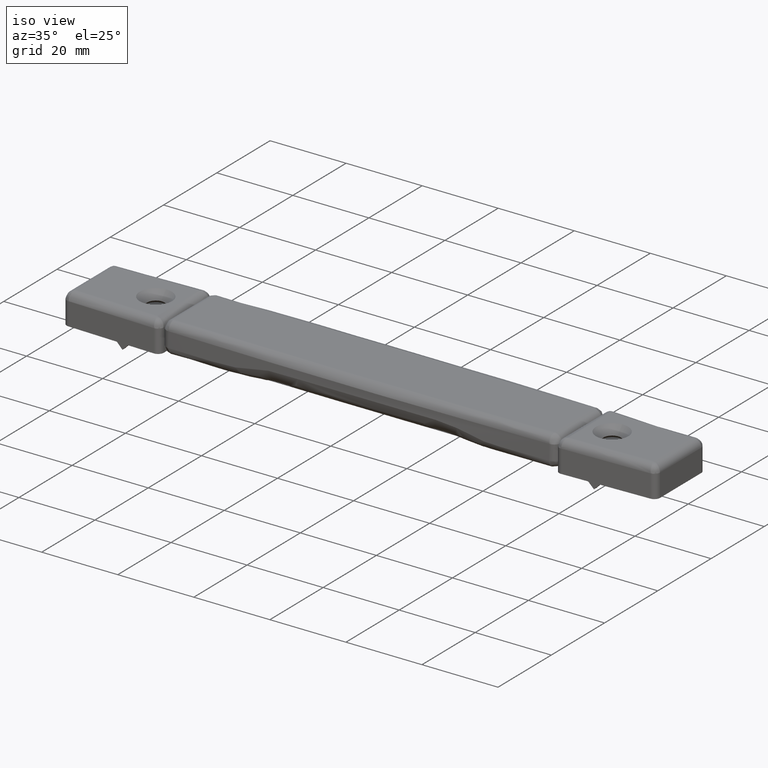
[diagram: clean part render]
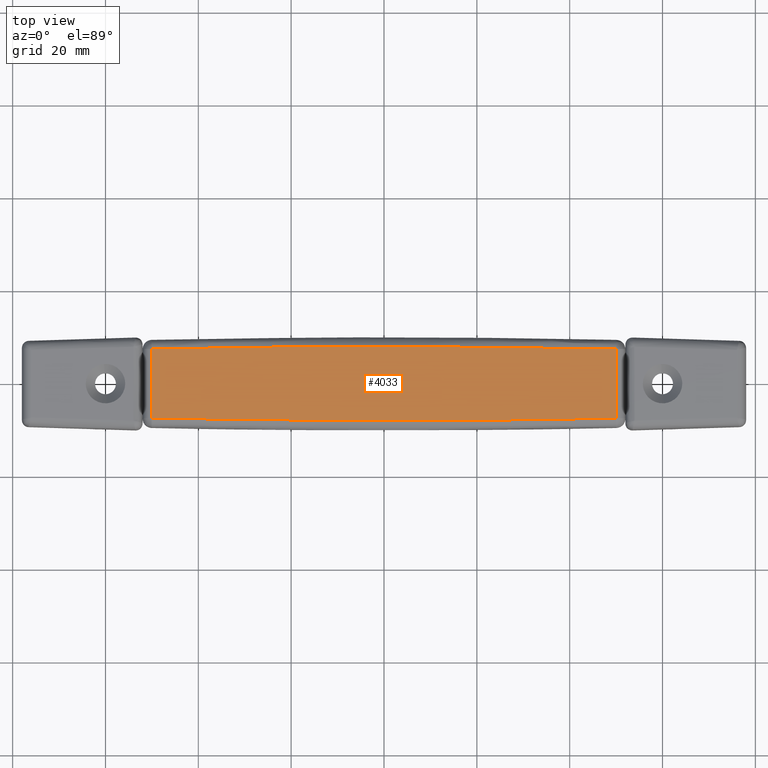
[diagram: tour spotlight — one face highlighted and labeled with its STEP entity id]
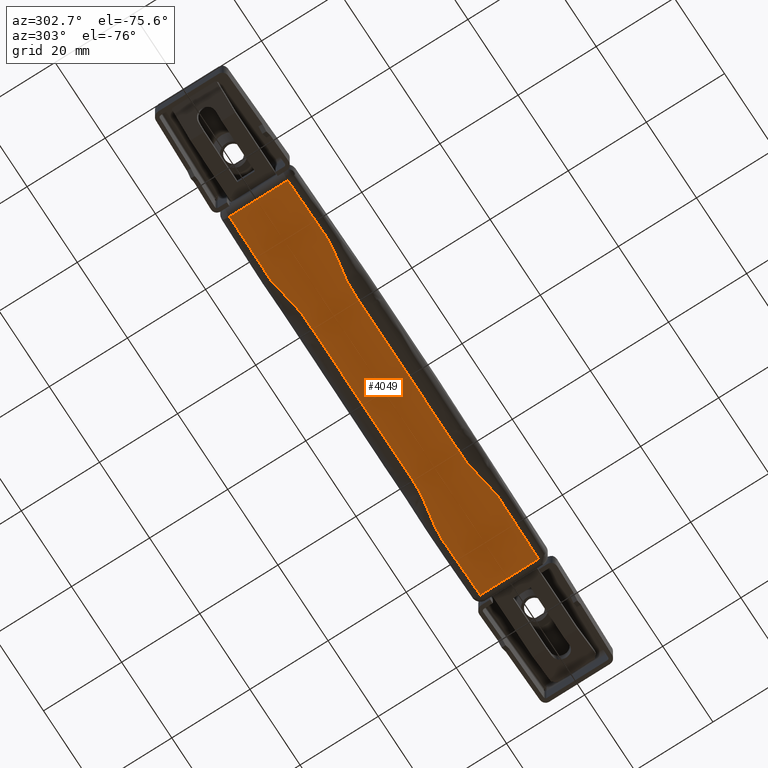
[diagram: tour spotlight — one face highlighted and labeled with its STEP entity id]
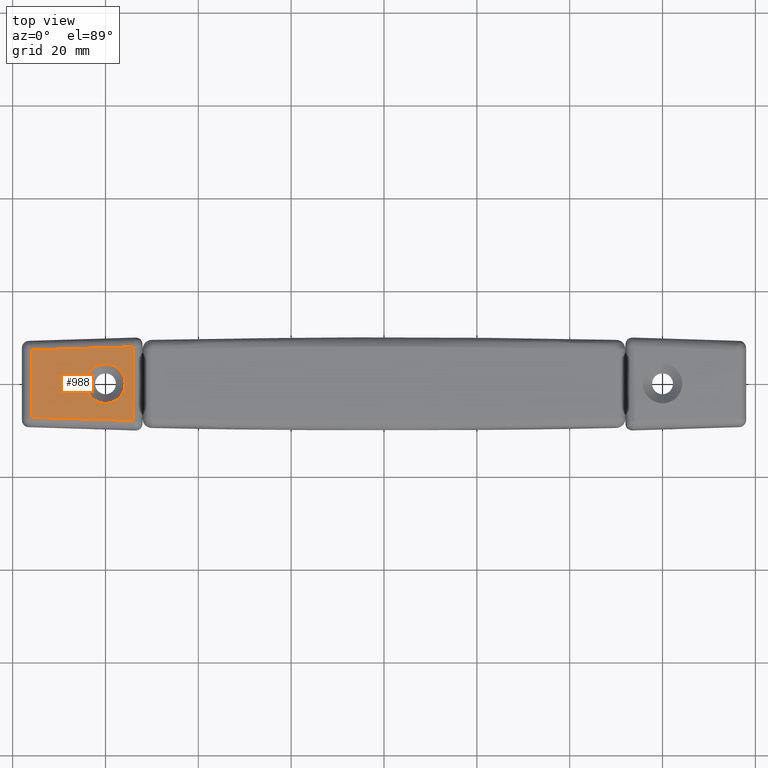
[diagram: tour spotlight — one face highlighted and labeled with its STEP entity id]
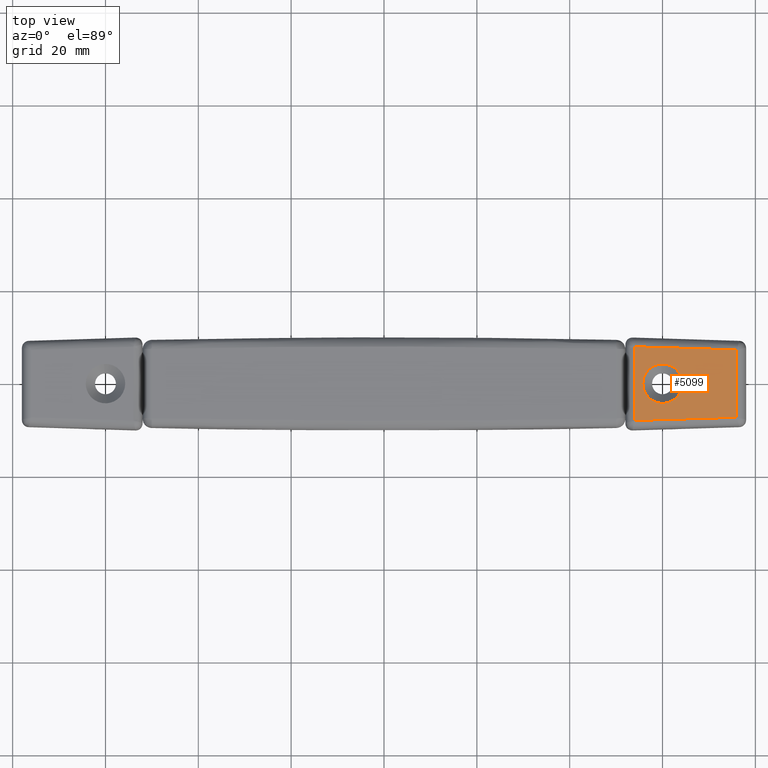
[diagram: tour spotlight — one face highlighted and labeled with its STEP entity id]
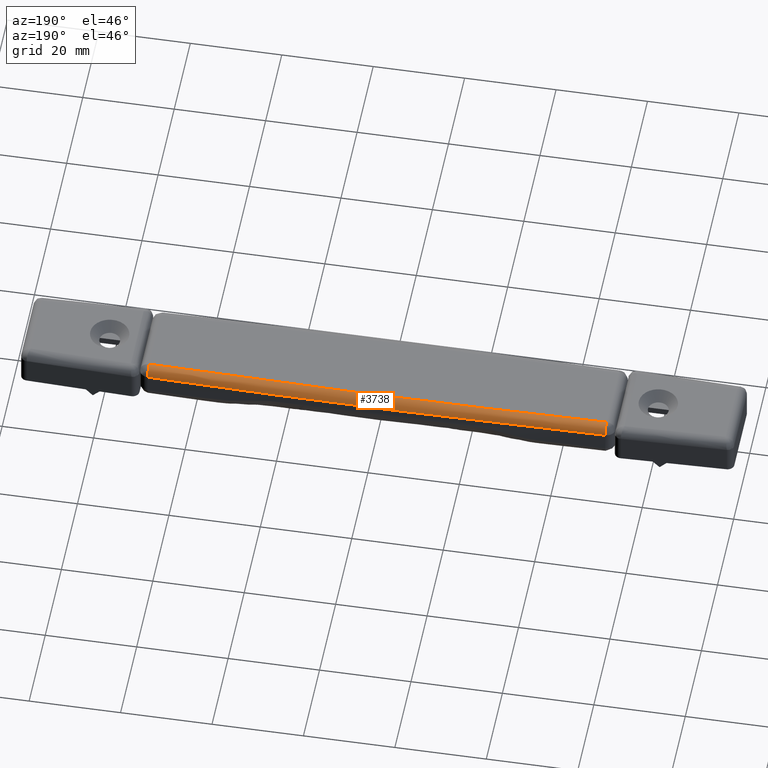
[diagram: tour spotlight — one face highlighted and labeled with its STEP entity id]
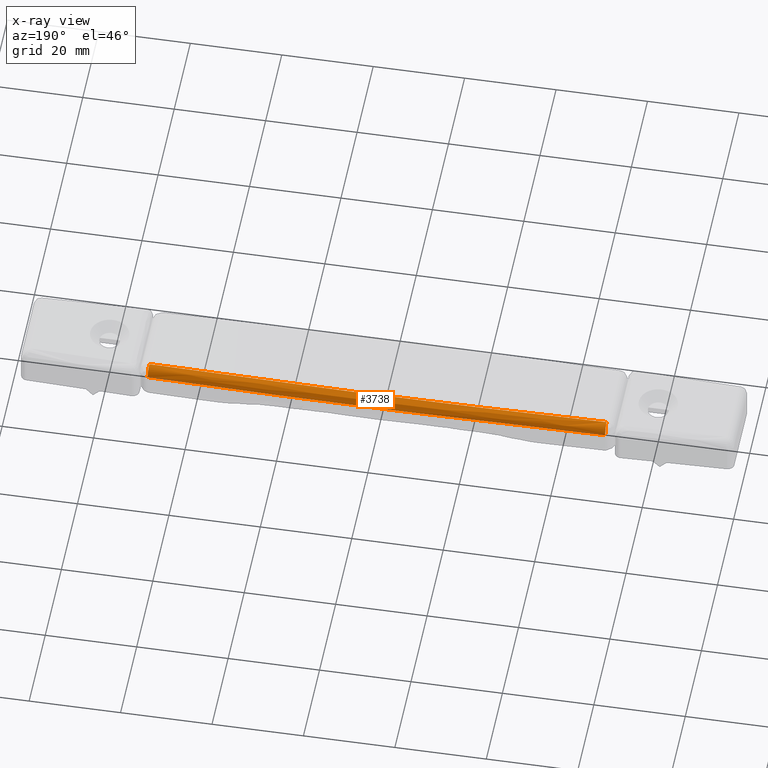
[diagram: x-ray of the same camera — body ghosted, this tour face saturated]
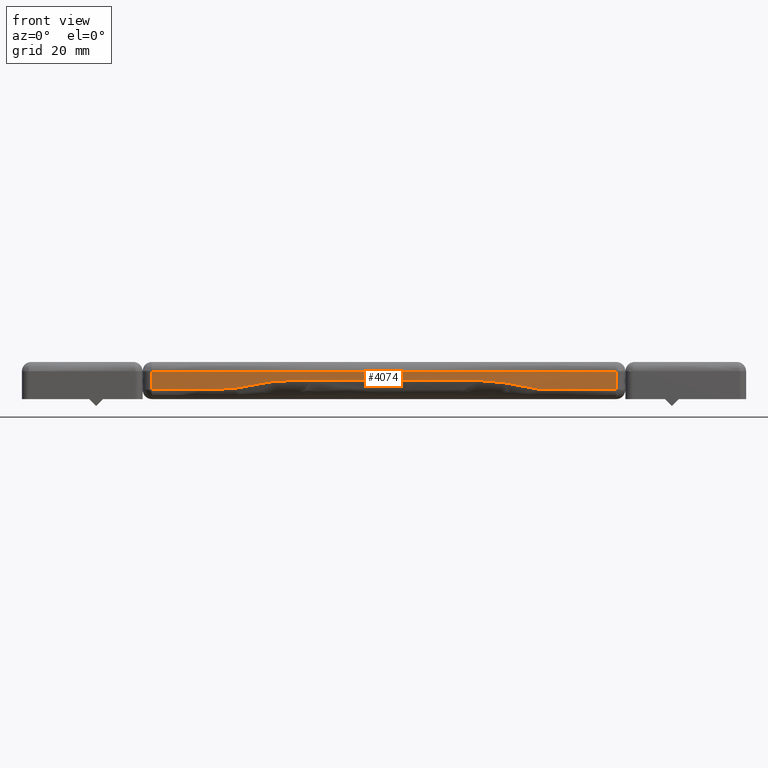
[diagram: tour spotlight — one face highlighted and labeled with its STEP entity id]
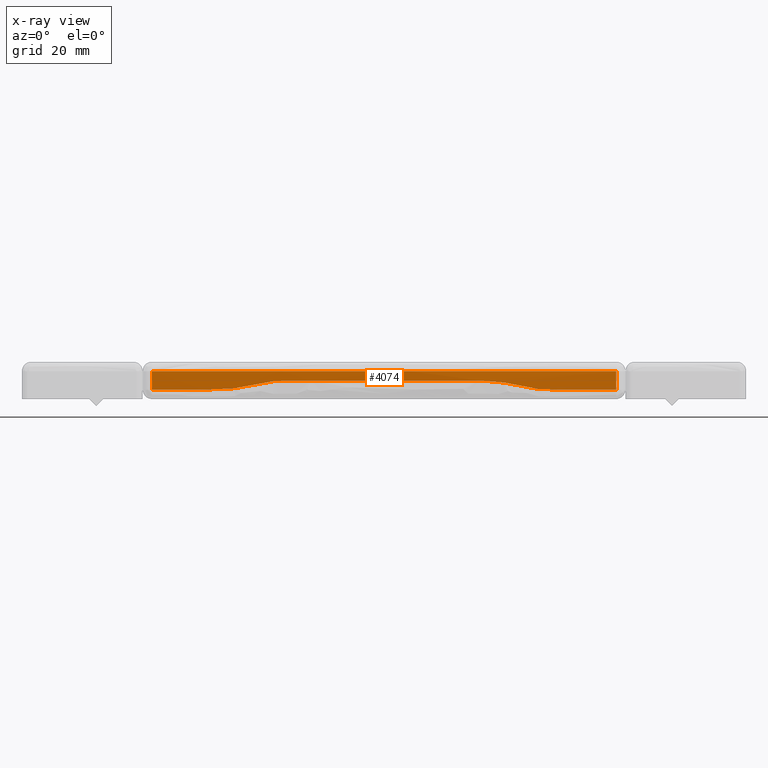
[diagram: x-ray of the same camera — body ghosted, this tour face saturated]
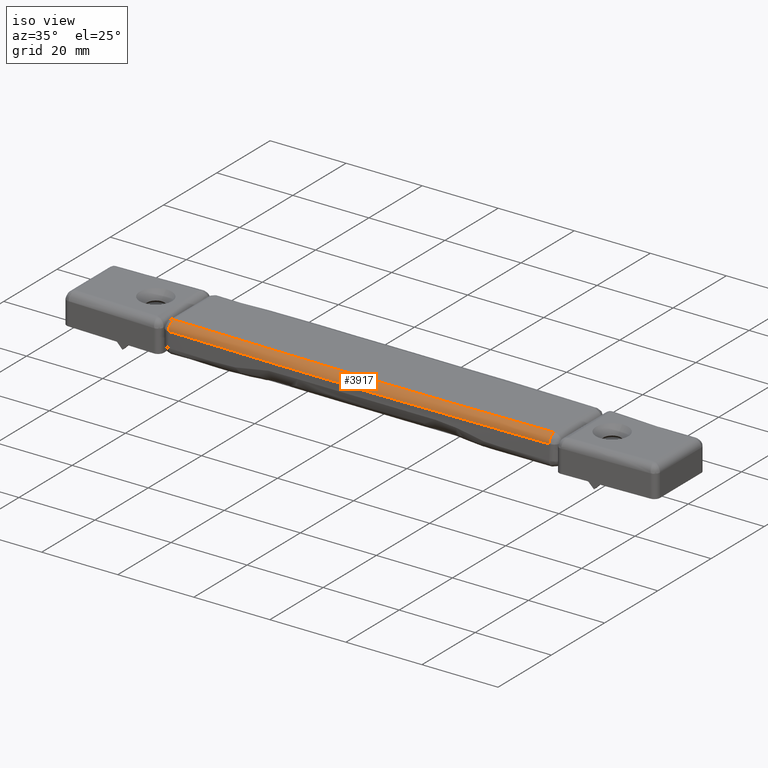
[diagram: tour spotlight — one face highlighted and labeled with its STEP entity id]
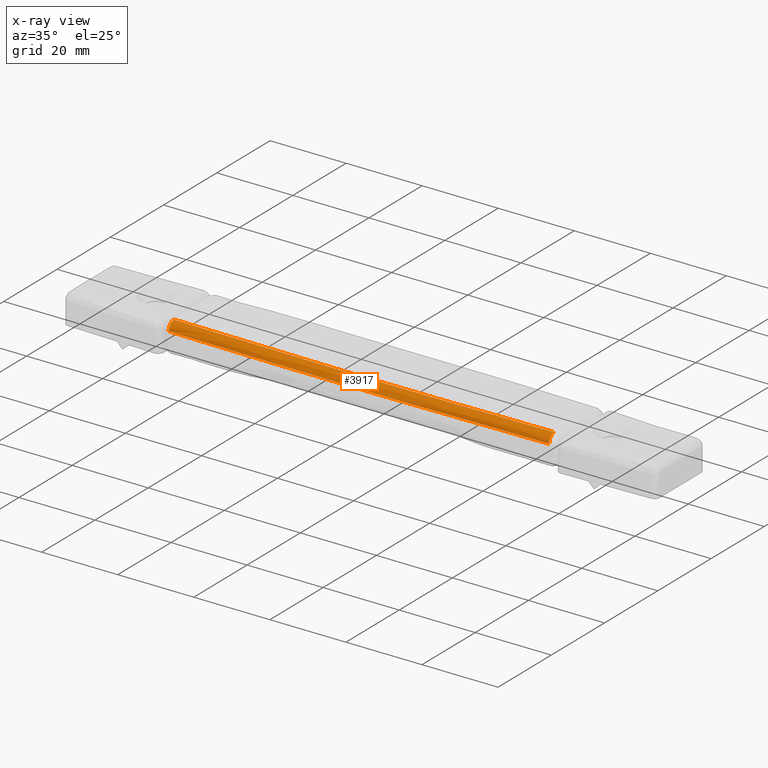
[diagram: x-ray of the same camera — body ghosted, this tour face saturated]
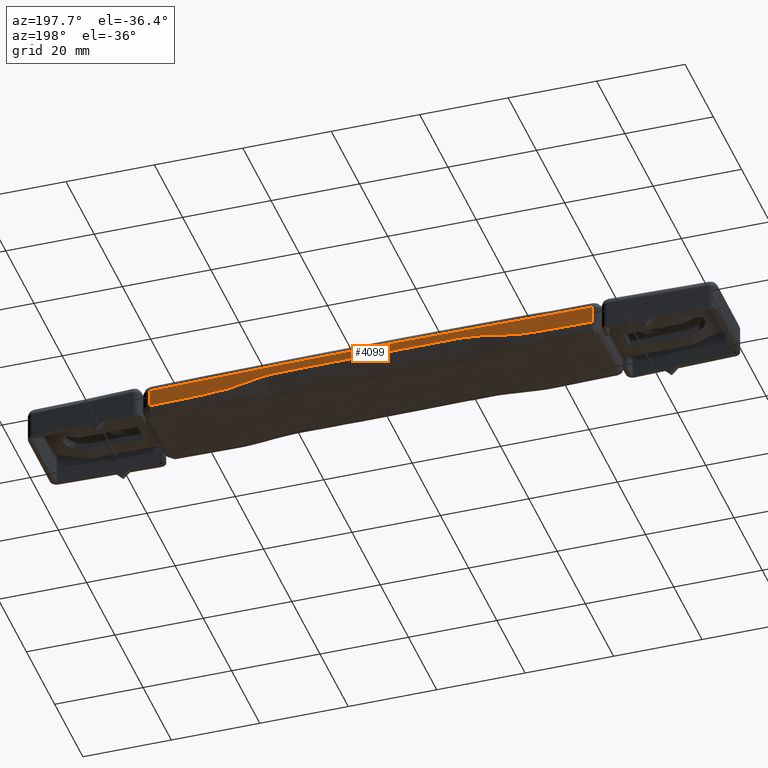
[diagram: tour spotlight — one face highlighted and labeled with its STEP entity id]
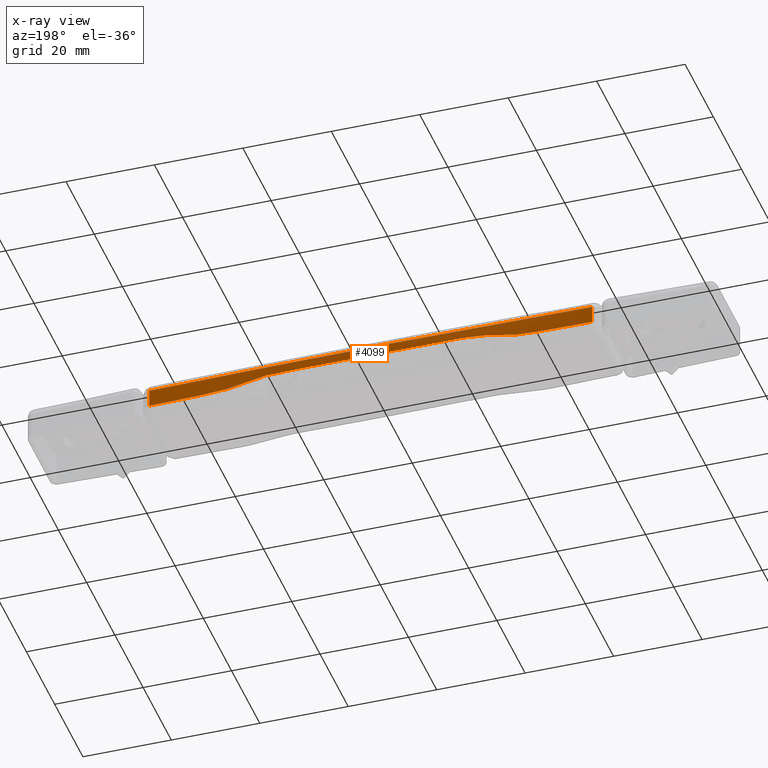
[diagram: x-ray of the same camera — body ghosted, this tour face saturated]
A machine part: a face-by-face anatomy tour. The part has 170 B-rep faces; the first image is the clean iso view, then the 8 largest visible faces are spotlighted one at a time (largest first), each with its STEP entity span.

Face 1 — top view, entity #4033. In plain terms, the highlighted face is a freeform B-spline surface patch.
Definition (entity closure, byte-faithful):
#3678=CARTESIAN_POINT('',(-49.999600000000001,7.453993049669090,8.0));
#3679=VERTEX_POINT('',#3678);
#3693=CARTESIAN_POINT('',(50.0,7.453984344422790,8.0));
#3694=VERTEX_POINT('',#3693);
#3695=CARTESIAN_POINT('',(50.0,7.453984344422790,8.0));
#3696=CARTESIAN_POINT('',(0.000200094725965,8.542140118592112,8.000000000000002));
#3697=CARTESIAN_POINT('',(-49.999599999998857,7.453993049669094,8.0));
#3705=(BOUNDED_CURVE()B_SPLINE_CURVE(2,(#3695,#3696,#3697),.UNSPECIFIED.,.F.,.U.)CURVE()GEOMETRIC_REPRESENTATION_ITEM()QUASI_UNIFORM_CURVE()RATIONAL_B_SPLINE_CURVE((1.0,0.999763267492191,1.0))REPRESENTATION_ITEM(''));
#3706=EDGE_CURVE('',#3694,#3679,#3705,.T.);
#3811=CARTESIAN_POINT('',(-49.999600000000001,-7.457993049668771,8.0));
#3812=VERTEX_POINT('',#3811);
#3826=CARTESIAN_POINT('',(-49.999600000000001,7.453993049669090,8.0));
#3827=CARTESIAN_POINT('',(-49.999600000000001,-7.457993049668771,8.0));
#3828=QUASI_UNIFORM_CURVE('',1,(#3826,#3827),.UNSPECIFIED.,.F.,.U.);
#3829=EDGE_CURVE('',#3679,#3812,#3828,.T.);
#3887=CARTESIAN_POINT('',(50.0,-7.457984344422460,8.0));
#3888=VERTEX_POINT('',#3887);
#3902=CARTESIAN_POINT('',(-49.999599999999987,-7.457993049668765,8.0));
#3903=CARTESIAN_POINT('',(0.000200094724259,-8.546140118591783,8.000000000000002));
#3904=CARTESIAN_POINT('',(49.999999999999829,-7.457984344422464,8.0));
#3912=(BOUNDED_CURVE()B_SPLINE_CURVE(2,(#3902,#3903,#3904),.UNSPECIFIED.,.F.,.U.)CURVE()GEOMETRIC_REPRESENTATION_ITEM()QUASI_UNIFORM_CURVE()RATIONAL_B_SPLINE_CURVE((1.0,0.999763267492191,1.0))REPRESENTATION_ITEM(''));
#3913=EDGE_CURVE('',#3812,#3888,#3912,.T.);
#4018=CARTESIAN_POINT('',(-54.994579826181393,8.797199968979625,8.0));
#4019=CARTESIAN_POINT('',(54.994982508379650,8.797199968979625,8.0));
#4020=CARTESIAN_POINT('',(-54.994579826181393,-8.801200398132741,8.0));
#4021=CARTESIAN_POINT('',(54.994982508379650,-8.801200398132741,8.0));
#4022=B_SPLINE_SURFACE_WITH_KNOTS('',1,1,((#4018,#4020),(#4019,#4021)),.UNSPECIFIED.,.F.,.F.,.U.,(2,2),(2,2),(0.0,109.989562334561000),(0.0,17.598400367112369),.UNSPECIFIED.);
#4023=ORIENTED_EDGE('',*,*,#3913,.T.);
#4024=CARTESIAN_POINT('',(50.0,-7.457984344422460,8.0));
#4025=CARTESIAN_POINT('',(50.0,7.453984344422790,8.0));
#4026=QUASI_UNIFORM_CURVE('',1,(#4024,#4025),.UNSPECIFIED.,.F.,.U.);
#4027=EDGE_CURVE('',#3888,#3694,#4026,.T.);
#4028=ORIENTED_EDGE('',*,*,#4027,.T.);
#4029=ORIENTED_EDGE('',*,*,#3706,.T.);
#4030=ORIENTED_EDGE('',*,*,#3829,.T.);
#4031=EDGE_LOOP('',(#4023,#4028,#4029,#4030));
#4032=FACE_OUTER_BOUND('',#4031,.T.);
#4033=ADVANCED_FACE('',(#4032),#4022,.F.);

Face 2 — auxiliary view, entity #4049. In plain terms, the highlighted face is a freeform B-spline surface patch.
Definition (entity closure, byte-faithful):
#2892=CARTESIAN_POINT('',(-49.999600000000001,7.453993043295670,0.0));
#2893=VERTEX_POINT('',#2892);
#3142=CARTESIAN_POINT('',(50.0,7.453984337407190,0.0));
#3143=VERTEX_POINT('',#3142);
#3157=CARTESIAN_POINT('',(-49.999600000000001,7.453993043295670,0.0));
#3158=CARTESIAN_POINT('',(-46.082928991246057,7.539208086076124,0.0));
#3159=CARTESIAN_POINT('',(-41.904920289410768,7.619755162427684,0.0));
#3160=CARTESIAN_POINT('',(-37.596150636058397,7.690959028298588,0.0));
#3161=CARTESIAN_POINT('',(-37.073887836700102,7.700303517321741,0.0));
#3162=CARTESIAN_POINT('',(-36.714884460127543,7.706293098118715,0.0));
#3163=CARTESIAN_POINT('',(-36.388609371978397,7.713118205272045,0.0));
#3164=CARTESIAN_POINT('',(-36.094864415919339,7.718813490124887,0.0));
#3165=CARTESIAN_POINT('',(-35.768481260680922,7.725904991689672,0.0));
#3166=CARTESIAN_POINT('',(-35.507222272392227,7.726733565481607,0.0));
#3167=CARTESIAN_POINT('',(-35.311391500971837,7.724147359225614,0.0));
#3168=CARTESIAN_POINT('',(-35.213453008181197,7.723104442542816,0.0));
#3169=CARTESIAN_POINT('',(-34.984992180252597,7.718221074084758,0.0));
#3170=CARTESIAN_POINT('',(-34.756585320890501,7.710679553695564,0.0));
#3171=CARTESIAN_POINT('',(-34.528339260255457,7.699441258498724,0.0));
#3172=CARTESIAN_POINT('',(-34.006561684482307,7.672844348710802,0.0));
#3173=CARTESIAN_POINT('',(-32.965474696383090,7.580821892244155,0.0));
#3174=CARTESIAN_POINT('',(-31.882361405524520,7.426980330677482,0.0));
#3175=CARTESIAN_POINT('',(-31.061045521274210,7.291449871780212,0.0));
#3176=CARTESIAN_POINT('',(-30.225589224968751,7.141651599526635,0.0));
#3177=CARTESIAN_POINT('',(-29.472122476308510,6.997029946890723,0.0));
#3178=CARTESIAN_POINT('',(-28.622701378124550,6.832335046995496,0.0));
#3179=CARTESIAN_POINT('',(-28.174198918358950,6.743842004210175,0.0));
#3180=CARTESIAN_POINT('',(-27.340855790086781,6.581991059518238,0.0));
#3181=CARTESIAN_POINT('',(-26.506560297864041,6.425768302655597,0.0));
#3182=CARTESIAN_POINT('',(-25.670180428295950,6.280859995471224,0.0));
#3183=CARTESIAN_POINT('',(-25.154200382278539,6.199495025730656,0.0));
#3184=CARTESIAN_POINT('',(-24.346601652047820,6.081898657462616,0.0));
#3185=CARTESIAN_POINT('',(-23.308368511579790,5.960830410483255,0.0));
#3186=CARTESIAN_POINT('',(-22.289246183072379,5.907132223337533,0.0));
#3187=CARTESIAN_POINT('',(-21.807818064606440,5.899904791173635,0.0));
#3188=CARTESIAN_POINT('',(-21.669133499526819,5.901023275988207,0.0));
#3189=CARTESIAN_POINT('',(-21.491600013791370,5.901136922805643,0.0));
#3190=CARTESIAN_POINT('',(-21.124333036237761,5.903951284595477,0.0));
#3191=CARTESIAN_POINT('',(-20.528531179184821,5.907147243308614,0.0));
#3192=CARTESIAN_POINT('',(-19.734811119997779,5.913922018008933,0.0));
#3193=CARTESIAN_POINT('',(-18.624793126276192,5.922465959983224,0.0));
#3194=CARTESIAN_POINT('',(-6.301015639243659,6.019578147753740,0.0));
#3195=CARTESIAN_POINT('',(6.774450400033462,6.019568517216327,0.0));
#3196=CARTESIAN_POINT('',(19.441022679260922,5.915991483347877,0.0));
#3197=CARTESIAN_POINT('',(20.818355483301030,5.905322147516966,0.0));
#3198=CARTESIAN_POINT('',(21.234608479324191,5.903284216314010,0.0));
#3199=CARTESIAN_POINT('',(21.548823581673560,5.900844039312431,0.0));
#3200=CARTESIAN_POINT('',(21.705931461410898,5.900983389515034,0.0));
#3201=CARTESIAN_POINT('',(21.860908990597689,5.899721434754014,0.0));
#3202=CARTESIAN_POINT('',(22.003601789730102,5.903740911796339,0.0));
#3203=CARTESIAN_POINT('',(22.166689980527590,5.907339446701265,0.0));
#3204=CARTESIAN_POINT('',(22.656120969256840,5.924771271434456,0.0));
#3205=CARTESIAN_POINT('',(23.568208438395519,5.989726282997066,0.0));
#3206=CARTESIAN_POINT('',(24.492032011534000,6.102596971851164,0.0));
#3207=CARTESIAN_POINT('',(25.202648926156812,6.206668482423345,0.0));
#3208=CARTESIAN_POINT('',(25.782928698988549,6.299415378628106,0.0));
#3209=CARTESIAN_POINT('',(26.699342040625730,6.460487391287681,0.0));
#3210=CARTESIAN_POINT('',(27.789897402998001,6.667638986093473,0.0));
#3211=CARTESIAN_POINT('',(28.782751314751479,6.863986031190132,0.0));
#3212=CARTESIAN_POINT('',(29.696477478700871,7.039828930505328,0.0));
#3213=CARTESIAN_POINT('',(30.450365143426950,7.182005480781927,0.0));
#3214=CARTESIAN_POINT('',(31.060972507015052,7.291309763138121,0.0));
#3215=CARTESIAN_POINT('',(31.882279570281469,7.426926464026802,0.0));
#3216=CARTESIAN_POINT('',(32.900766000446573,7.571579869977136,0.0));
#3217=CARTESIAN_POINT('',(33.941339971457040,7.667082218328652,0.0));
#3218=CARTESIAN_POINT('',(34.479152405346532,7.697481093368283,0.0));
#3219=CARTESIAN_POINT('',(34.772742914019837,7.707634959334868,0.0));
#3220=CARTESIAN_POINT('',(35.148105588652470,7.714573071183522,0.0));
#3221=CARTESIAN_POINT('',(36.045902578390908,7.717817864924758,0.0));
#3222=CARTESIAN_POINT('',(37.074220743399401,7.701819106746175,0.0));
#3223=CARTESIAN_POINT('',(38.200324134653407,7.678804217542647,0.0));
#3224=CARTESIAN_POINT('',(39.277502916643058,7.657377303141685,0.0));
#3225=CARTESIAN_POINT('',(40.599497444447927,7.633262735048892,0.0));
#3226=CARTESIAN_POINT('',(42.411063777158581,7.601653927058509,0.0));
#3227=CARTESIAN_POINT('',(44.075860088314599,7.577755609415204,0.0));
#3228=CARTESIAN_POINT('',(45.218247680821882,7.554781494443112,0.0));
#3229=CARTESIAN_POINT('',(47.062452688337103,7.517484169875009,0.0));
#3230=CARTESIAN_POINT('',(48.531232571826841,7.486000342904489,0.0));
#3231=CARTESIAN_POINT('',(50.0,7.453984337407190,0.0));
#3232=B_SPLINE_CURVE_WITH_KNOTS('',3,(#3157,#3158,#3159,#3160,#3161,#3162,#3163,#3164,#3165,#3166,#3167,#3168,#3169,#3170,#3171,#3172,#3173,#3174,#3175,#3176,#3177,#3178,#3179,#3180,#3181,#3182,#3183,#3184,#3185,#3186,#3187,#3188,#3189,#3190,#3191,#3192,#3193,#3194,#3195,#3196,#3197,#3198,#3199,#3200,#3201,#3202,#3203,#3204,#3205,#3206,#3207,#3208,#3209,#3210,#3211,#3212,#3213,#3214,#3215,#3216,#3217,#3218,#3219,#3220,#3221,#3222,#3223,#3224,#3225,#3226,#3227,#3228,#3229,#3230,#3231),.UNSPECIFIED.,.F.,.U.,(4,1,1,1,1,1,1,1,1,1,1,1,1,1,1,1,1,1,1,2,1,1,1,1,1,1,1,1,1,1,1,1,1,1,1,1,1,1,1,1,1,1,1,1,1,1,1,1,1,1,1,1,1,1,1,1,1,1,1,1,1,1,1,1,1,1,1,1,1,2,4),(0.000120689475068,11.752915614870499,12.536435497510720,12.928195235704420,13.319954973898090,13.613593843476080,13.907232713053990,14.201358195321260,14.592967761169360,14.690937065795890,14.788906370422341,14.886794296495180,15.376482434235269,15.474432670961530,15.572382907687750,16.943713564185689,18.608683742733088,18.853291253882261,19.441042693035779,21.154936936345710,22.036763703013492,22.526377742026611,23.701685787795501,24.583100227516201,25.072827663290159,25.268675008499290,27.031608916278859,28.206826020492912,28.329003423874990,28.475942462531989,28.622881501189031,28.861604362854880,29.577772947852580,30.410311235311109,31.242849522769600,32.907926097686641,67.382791068653859,70.468142765070354,70.908907293129815,71.514913371294071,71.716915397348771,71.851577416764741,71.986239436180625,72.181820289375537,72.279767965704806,72.475643957725197,73.650920272305171,75.022065895861701,75.266861945779681,75.805556513982566,76.784927782978315,78.058168115888478,79.135660858885160,79.821173030336851,80.849636503959175,81.437189517374264,81.682052006252079,83.346988871948213,84.522305929415339,84.816022748269972,84.962856593748882,85.403582147359089,85.942252789383076,87.656190134078955,88.488753573317780,89.321317012556548,90.888356200427140,92.455395396645827,94.756844274284205,95.883241721495438,100.290591420283800),.UNSPECIFIED.);
#3233=EDGE_CURVE('',#2893,#3143,#3232,.T.);
#3281=CARTESIAN_POINT('',(-49.999600000000001,-7.457993042501350,0.0));
#3282=VERTEX_POINT('',#3281);
#3468=CARTESIAN_POINT('',(50.0,-7.457984337529070,0.0));
#3469=VERTEX_POINT('',#3468);
#3470=CARTESIAN_POINT('',(50.0,-7.457984337529070,0.0));
#3471=CARTESIAN_POINT('',(46.083329006088043,-7.543200062457871,0.0));
#3472=CARTESIAN_POINT('',(41.905320318279770,-7.623747866410077,0.0));
#3473=CARTESIAN_POINT('',(37.596550677327187,-7.694952482586531,0.0));
#3474=CARTESIAN_POINT('',(37.074287879595921,-7.704297062547421,0.0));
#3475=CARTESIAN_POINT('',(36.715284504067142,-7.710286705858349,0.0));
#3476=CARTESIAN_POINT('',(36.389009417107737,-7.717111869815490,0.0));
#3477=CARTESIAN_POINT('',(36.095264462040433,-7.722807205811794,0.0));
#3478=CARTESIAN_POINT('',(35.768881308036569,-7.729898764200981,0.0));
#3479=CARTESIAN_POINT('',(35.507622319891063,-7.730727383470025,0.0));
#3480=CARTESIAN_POINT('',(35.311791548020707,-7.728141211302586,0.0));
#3481=CARTESIAN_POINT('',(35.213853141529178,-7.727099186093845,0.0));
#3482=CARTESIAN_POINT('',(34.985391767877843,-7.722210348055568,0.0));
#3483=CARTESIAN_POINT('',(34.756986592460862,-7.714685907495341,0.0));
#3484=CARTESIAN_POINT('',(34.528736489987153,-7.703406803752269,0.0));
#3485=CARTESIAN_POINT('',(34.202650168443213,-7.686998815725701,0.0));
#3486=CARTESIAN_POINT('',(33.160505142813690,-7.609761740275856,0.0));
#3487=CARTESIAN_POINT('',(32.076016493610730,-7.462655991100506,0.0));
#3488=CARTESIAN_POINT('',(31.061450824731349,-7.295500916152434,0.0));
#3489=CARTESIAN_POINT('',(30.225996063639101,-7.145613526811344,0.0));
#3490=CARTESIAN_POINT('',(29.472521425225452,-7.001028274304696,0.0));
#3491=CARTESIAN_POINT('',(28.623101571101760,-6.836328503550615,0.0));
#3492=CARTESIAN_POINT('',(28.174598512548091,-6.747839292627484,0.0));
#3493=CARTESIAN_POINT('',(27.341255913795809,-6.585983197839859,0.0));
#3494=CARTESIAN_POINT('',(26.506959591486549,-6.429770279701258,0.0));
#3495=CARTESIAN_POINT('',(25.670581302281299,-6.284843698344522,0.0));
#3496=CARTESIAN_POINT('',(25.154599723713758,-6.203495154624973,0.0));
#3497=CARTESIAN_POINT('',(24.347001122933861,-6.085891858388993,0.0));
#3498=CARTESIAN_POINT('',(23.308768492486472,-5.964826904615578,0.0));
#3499=CARTESIAN_POINT('',(22.289645938753520,-5.911128652591198,0.0));
#3500=CARTESIAN_POINT('',(21.808217775228702,-5.903900897013902,0.0));
#3501=CARTESIAN_POINT('',(21.669533229158290,-5.905019503180538,0.0));
#3502=CARTESIAN_POINT('',(21.491999743437269,-5.905133180916952,0.0));
#3503=CARTESIAN_POINT('',(21.124732766377541,-5.907947606653992,0.0));
#3504=CARTESIAN_POINT('',(20.528930909899529,-5.911143669119475,0.0));
#3505=CARTESIAN_POINT('',(19.735210851919671,-5.917918582007182,0.0));
#3506=CARTESIAN_POINT('',(18.625192858170461,-5.926462719169028,0.0));
#3507=CARTESIAN_POINT('',(6.301415411411707,-6.023576962975038,0.0));
#3508=CARTESIAN_POINT('',(-6.333273746747479,-6.023572150055511,0.0));
#3509=CARTESIAN_POINT('',(-18.852955749387771,-5.924700730488869,0.0));
#3510=CARTESIAN_POINT('',(-20.028293160857931,-5.915695760695321,0.0));
#3511=CARTESIAN_POINT('',(-20.817955081675670,-5.909231425885642,0.0));
#3512=CARTESIAN_POINT('',(-21.234208749291689,-5.907287913255294,0.0));
#3513=CARTESIAN_POINT('',(-21.548423852066719,-5.904847790973215,0.0));
#3514=CARTESIAN_POINT('',(-21.705531731803038,-5.904987168692754,0.0));
#3515=CARTESIAN_POINT('',(-21.860509261071609,-5.903725240000284,0.0));
#3516=CARTESIAN_POINT('',(-22.003202059937831,-5.907744744887882,0.0));
#3517=CARTESIAN_POINT('',(-22.166290251912191,-5.911343317230818,0.0));
#3518=CARTESIAN_POINT('',(-22.655721221774339,-5.928775156150887,0.0));
#3519=CARTESIAN_POINT('',(-23.567808725671231,-5.993730470833176,0.0));
#3520=CARTESIAN_POINT('',(-24.491632212059081,-6.106601396733417,0.0));
#3521=CARTESIAN_POINT('',(-25.202249936799792,-6.210666289793909,0.0));
#3522=CARTESIAN_POINT('',(-25.782527266371272,-6.303435865024305,0.0));
#3523=CARTESIAN_POINT('',(-26.698944614284681,-6.464467873976586,0.0));
#3524=CARTESIAN_POINT('',(-27.789492898334831,-6.671676220044976,0.0));
#3525=CARTESIAN_POINT('',(-28.782353503612530,-6.867977106385001,0.0));
#3526=CARTESIAN_POINT('',(-29.696077402212101,-7.043834880607364,0.0));
#3527=CARTESIAN_POINT('',(-30.449965326681578,-7.186013865233550,0.0));
#3528=CARTESIAN_POINT('',(-31.060575437695348,-7.295338057730672,0.0));
#3529=CARTESIAN_POINT('',(-32.010713374908953,-7.452117527607433,0.0));
#3530=CARTESIAN_POINT('',(-33.030049092458079,-7.592400002731167,0.0));
#3531=CARTESIAN_POINT('',(-34.071355071320262,-7.678538125209578,0.0));
#3532=CARTESIAN_POINT('',(-34.478749934377468,-7.701480325221857,0.0));
#3533=CARTESIAN_POINT('',(-34.772343531593748,-7.711637873092646,0.0));
#3534=CARTESIAN_POINT('',(-35.147704676242007,-7.718586650248383,0.0));
#3535=CARTESIAN_POINT('',(-36.045503437227083,-7.721815943489686,0.0));
#3536=CARTESIAN_POINT('',(-37.073820155674767,-7.705830531436167,0.0));
#3537=CARTESIAN_POINT('',(-38.199924226594483,-7.682809670257100,0.0));
#3538=CARTESIAN_POINT('',(-39.277102881236580,-7.661384141511815,0.0));
#3539=CARTESIAN_POINT('',(-40.599097413239960,-7.637269803605667,0.0));
#3540=CARTESIAN_POINT('',(-42.410663751424870,-7.605661311078714,0.0));
#3541=CARTESIAN_POINT('',(-44.075460066705972,-7.581763283442301,0.0));
#3542=CARTESIAN_POINT('',(-45.217847663172272,-7.558789367264217,0.0));
#3543=CARTESIAN_POINT('',(-47.062052677206381,-7.521492363676178,0.0));
#3544=CARTESIAN_POINT('',(-48.530832566217342,-7.490008792344348,0.0));
#3545=CARTESIAN_POINT('',(-49.999600000000001,-7.457993042501350,0.0));
#3546=B_SPLINE_CURVE_WITH_KNOTS('',3,(#3470,#3471,#3472,#3473,#3474,#3475,#3476,#3477,#3478,#3479,#3480,#3481,#3482,#3483,#3484,#3485,#3486,#3487,#3488,#3489,#3490,#3491,#3492,#3493,#3494,#3495,#3496,#3497,#3498,#3499,#3500,#3501,#3502,#3503,#3504,#3505,#3506,#3507,#3508,#3509,#3510,#3511,#3512,#3513,#3514,#3515,#3516,#3517,#3518,#3519,#3520,#3521,#3522,#3523,#3524,#3525,#3526,#3527,#3528,#3529,#3530,#3531,#3532,#3533,#3534,#3535,#3536,#3537,#3538,#3539,#3540,#3541,#3542,#3543,#3544,#3545),.UNSPECIFIED.,.F.,.U.,(4,1,1,1,1,1,1,1,1,1,1,1,1,1,1,1,1,1,1,2,1,1,1,1,1,1,1,1,1,1,1,1,1,1,1,1,1,1,1,1,1,1,1,1,1,1,1,1,1,1,1,1,1,1,1,1,1,1,1,1,1,1,1,1,1,1,1,1,1,1,2,4),(0.000120689486863,11.752915614873469,12.536435497513111,12.928195235706481,13.319954973899851,13.613593843475440,13.907232713050931,14.201358195322090,14.592967761168060,14.690937065795080,14.788906370422101,14.886794296493450,15.376482434233370,15.474432670959660,15.572382907685890,16.355996279963730,18.608683742732381,18.853291253882819,19.441042693025761,21.154936936348658,22.036763703011321,22.526377742027979,23.701685787799480,24.583100227508169,25.072827663287040,25.268675008497880,27.031608916277481,28.206826020491111,28.329003423865700,28.475942462533329,28.622881501201011,28.861604362861389,29.577772947842622,30.410311235267830,31.242849522693060,32.907926097543481,67.382791068231256,69.145849180679548,70.468142765015642,70.908907293127712,71.514913371290689,71.716915397345105,71.851577416761955,71.986239436178835,72.181820289369767,72.279767965698980,72.475643957719399,73.650920272299544,75.022065895856230,75.266861945773883,75.805556513980207,76.784927782972858,78.058168115883205,79.135660858874090,79.821173030345790,80.849636503944652,81.437189517364715,81.682052006246309,83.738780758914913,84.522305929409285,84.816022748260977,84.962856593743979,85.403582147354555,85.942252789378529,87.656190134072418,88.488753573311286,89.321317012550196,90.888356200420745,92.455395396639304,94.756844274188836,95.883241721371988,100.290591420275800),.UNSPECIFIED.);
#3547=EDGE_CURVE('',#3469,#3282,#3546,.T.);
#3650=CARTESIAN_POINT('',(-49.999600000000001,-7.457993042501350,0.0));
#3651=CARTESIAN_POINT('',(-49.999600000000001,7.453993043295670,0.0));
#3652=QUASI_UNIFORM_CURVE('',1,(#3650,#3651),.UNSPECIFIED.,.F.,.U.);
#3653=EDGE_CURVE('',#3282,#2893,#3652,.T.);
#4034=CARTESIAN_POINT('',(-54.994579826181393,8.478388659799030,0.0));
#4035=CARTESIAN_POINT('',(54.994982508379650,8.478388659799030,0.0));
#4036=CARTESIAN_POINT('',(-54.994579826181393,-8.482382159164049,0.0));
#4037=CARTESIAN_POINT('',(54.994982508379650,-8.482382159164049,0.0));
#4038=B_SPLINE_SURFACE_WITH_KNOTS('',1,1,((#4034,#4036),(#4035,#4037)),.UNSPECIFIED.,.F.,.F.,.U.,(2,2),(2,2),(0.0,109.989562334561000),(0.0,16.960770818963081),.UNSPECIFIED.);
#4039=ORIENTED_EDGE('',*,*,#3653,.T.);
#4040=ORIENTED_EDGE('',*,*,#3233,.T.);
#4041=CARTESIAN_POINT('',(50.0,7.453984337407190,0.0));
#4042=CARTESIAN_POINT('',(50.0,-7.457984337529070,0.0));
#4043=QUASI_UNIFORM_CURVE('',1,(#4041,#4042),.UNSPECIFIED.,.F.,.U.);
#4044=EDGE_CURVE('',#3143,#3469,#4043,.T.);
#4045=ORIENTED_EDGE('',*,*,#4044,.T.);
#4046=ORIENTED_EDGE('',*,*,#3547,.T.);
#4047=EDGE_LOOP('',(#4039,#4040,#4045,#4046));
#4048=FACE_OUTER_BOUND('',#4047,.T.);
#4049=ADVANCED_FACE('',(#4048),#4038,.T.);

Face 3 — top view, entity #988. In plain terms, the highlighted face is a freeform B-spline surface patch.
Definition (entity closure, byte-faithful):
#840=CARTESIAN_POINT('',(-59.666548842754082,-4.236898668387372,8.000000000052811));
#841=VERTEX_POINT('',#840);
#847=CARTESIAN_POINT('',(-55.749999999999723,0.0,8.0));
#848=VERTEX_POINT('',#847);
#849=CARTESIAN_POINT('',(-55.749999999999723,0.0,8.0));
#850=CARTESIAN_POINT('',(-55.749999999997641,-3.928659589203400,8.000000000026406));
#851=CARTESIAN_POINT('',(-59.666548842754082,-4.236898668387372,8.000000000052811));
#859=(BOUNDED_CURVE()B_SPLINE_CURVE(2,(#849,#850,#851),.UNSPECIFIED.,.F.,.U.)B_SPLINE_CURVE_WITH_KNOTS((3,3),(0.0,0.236331300616647),.UNSPECIFIED.)CURVE()GEOMETRIC_REPRESENTATION_ITEM()RATIONAL_B_SPLINE_CURVE((1.0,0.723120658624082,0.969723356138175))REPRESENTATION_ITEM(''));
#860=EDGE_CURVE('',#848,#841,#859,.T.);
#862=CARTESIAN_POINT('',(-60.333451157245932,4.236898668387372,8.000000000052811));
#863=VERTEX_POINT('',#862);
#864=CARTESIAN_POINT('',(-60.333451157245925,4.236898668387372,8.000000000052811));
#865=CARTESIAN_POINT('',(-60.166982954986807,4.250000000051979,8.000000000051852));
#866=CARTESIAN_POINT('',(-60.000000000003993,4.250000000050945,8.000000000050815));
#867=CARTESIAN_POINT('',(-55.750000000001620,4.250000000024618,8.000000000024409));
#868=CARTESIAN_POINT('',(-55.749999999999723,0.0,8.0));
#876=(BOUNDED_CURVE()B_SPLINE_CURVE(2,(#864,#865,#866,#867,#868),.UNSPECIFIED.,.F.,.U.)B_SPLINE_CURVE_WITH_KNOTS((3,2,3),(0.736331300616647,0.750000000000000,1.0),.UNSPECIFIED.)CURVE()GEOMETRIC_REPRESENTATION_ITEM()RATIONAL_B_SPLINE_CURVE((0.969723356138174,0.983986122562465,1.0,0.707106781186547,1.0))REPRESENTATION_ITEM(''));
#877=EDGE_CURVE('',#863,#848,#876,.T.);
#913=CARTESIAN_POINT('',(-64.250000000000284,0.0,8.0));
#914=VERTEX_POINT('',#913);
#915=CARTESIAN_POINT('',(-64.250000000000284,0.0,8.0));
#916=CARTESIAN_POINT('',(-64.250000000002345,3.928659589203391,8.000000000026406));
#917=CARTESIAN_POINT('',(-60.333451157245925,4.236898668387372,8.000000000052811));
#925=(BOUNDED_CURVE()B_SPLINE_CURVE(2,(#915,#916,#917),.UNSPECIFIED.,.F.,.U.)B_SPLINE_CURVE_WITH_KNOTS((3,3),(0.500000000000000,0.736331300616647),.UNSPECIFIED.)CURVE()GEOMETRIC_REPRESENTATION_ITEM()RATIONAL_B_SPLINE_CURVE((1.0,0.723120658624082,0.969723356138174))REPRESENTATION_ITEM(''));
#926=EDGE_CURVE('',#914,#863,#925,.T.);
#928=CARTESIAN_POINT('',(-59.666548842754082,-4.236898668387372,8.000000000052811));
#929=CARTESIAN_POINT('',(-59.833017045013193,-4.250000000051978,8.000000000051852));
#930=CARTESIAN_POINT('',(-59.999999999996007,-4.250000000050944,8.000000000050815));
#931=CARTESIAN_POINT('',(-64.249999999998366,-4.250000000024618,8.000000000024409));
#932=CARTESIAN_POINT('',(-64.250000000000284,0.0,8.0));
#940=(BOUNDED_CURVE()B_SPLINE_CURVE(2,(#928,#929,#930,#931,#932),.UNSPECIFIED.,.F.,.U.)B_SPLINE_CURVE_WITH_KNOTS((3,2,3),(0.236331300616647,0.250000000000000,0.500000000000000),.UNSPECIFIED.)CURVE()GEOMETRIC_REPRESENTATION_ITEM()RATIONAL_B_SPLINE_CURVE((0.969723356138175,0.983986122562466,1.0,0.707106781186547,1.0))REPRESENTATION_ITEM(''));
#941=EDGE_CURVE('',#841,#914,#940,.T.);
#947=CARTESIAN_POINT('',(-52.901100042640273,-8.731075155408428,8.0));
#948=CARTESIAN_POINT('',(-77.098900547445709,-8.731075155408428,8.0));
#949=CARTESIAN_POINT('',(-52.901100042640273,8.730075581214910,8.0));
#950=CARTESIAN_POINT('',(-77.098900547445709,8.730075581214910,8.0));
#951=B_SPLINE_SURFACE_WITH_KNOTS('',1,1,((#947,#949),(#948,#950)),.UNSPECIFIED.,.F.,.F.,.U.,(2,2),(2,2),(0.0,24.197800504805439),(0.0,17.461150736623338),.UNSPECIFIED.);
#952=CARTESIAN_POINT('',(-76.0,7.259890742323860,8.0));
#953=VERTEX_POINT('',#952);
#954=CARTESIAN_POINT('',(-76.0,-7.260890742323780,8.0));
#955=VERTEX_POINT('',#954);
#956=CARTESIAN_POINT('',(-76.0,7.259890742323860,8.0));
#957=CARTESIAN_POINT('',(-76.0,-7.260890742323780,8.0));
#958=QUASI_UNIFORM_CURVE('',1,(#956,#957),.UNSPECIFIED.,.F.,.U.);
#959=EDGE_CURVE('',#953,#955,#958,.T.);
#960=ORIENTED_EDGE('',*,*,#959,.T.);
#961=CARTESIAN_POINT('',(-54.0,-7.938108133628219,8.0));
#962=VERTEX_POINT('',#961);
#963=CARTESIAN_POINT('',(-76.0,-7.260890742323780,8.0));
#964=CARTESIAN_POINT('',(-54.0,-7.938108133628219,8.0));
#965=QUASI_UNIFORM_CURVE('',1,(#963,#964),.UNSPECIFIED.,.F.,.U.);
#966=EDGE_CURVE('',#955,#962,#965,.T.);
#967=ORIENTED_EDGE('',*,*,#966,.T.);
#968=CARTESIAN_POINT('',(-54.0,7.937108133628220,8.0));
#969=VERTEX_POINT('',#968);
#970=CARTESIAN_POINT('',(-54.0,-7.938108133628219,8.0));
#971=CARTESIAN_POINT('',(-54.0,7.937108133628220,8.0));
#972=QUASI_UNIFORM_CURVE('',1,(#970,#971),.UNSPECIFIED.,.F.,.U.);
#973=EDGE_CURVE('',#962,#969,#972,.T.);
#974=ORIENTED_EDGE('',*,*,#973,.T.);
#975=CARTESIAN_POINT('',(-54.0,7.937108133628220,8.0));
#976=CARTESIAN_POINT('',(-76.0,7.259890742323860,8.0));
#977=QUASI_UNIFORM_CURVE('',1,(#975,#976),.UNSPECIFIED.,.F.,.U.);
#978=EDGE_CURVE('',#969,#953,#977,.T.);
#979=ORIENTED_EDGE('',*,*,#978,.T.);
#980=EDGE_LOOP('',(#960,#967,#974,#979));
#981=FACE_OUTER_BOUND('',#980,.T.);
#982=ORIENTED_EDGE('',*,*,#926,.T.);
#983=ORIENTED_EDGE('',*,*,#877,.T.);
#984=ORIENTED_EDGE('',*,*,#860,.T.);
#985=ORIENTED_EDGE('',*,*,#941,.T.);
#986=EDGE_LOOP('',(#982,#983,#984,#985));
#987=FACE_BOUND('',#986,.T.);
#988=ADVANCED_FACE('',(#981,#987),#951,.F.);

Face 4 — top view, entity #5099. In plain terms, the highlighted face is a freeform B-spline surface patch.
Definition (entity closure, byte-faithful):
#4951=CARTESIAN_POINT('',(59.666548842754082,4.236898668387372,8.000000000052811));
#4952=VERTEX_POINT('',#4951);
#4958=CARTESIAN_POINT('',(55.749999999999723,0.0,8.0));
#4959=VERTEX_POINT('',#4958);
#4960=CARTESIAN_POINT('',(55.749999999999723,0.0,8.0));
#4961=CARTESIAN_POINT('',(55.749999999997641,3.928659589203400,8.000000000026406));
#4962=CARTESIAN_POINT('',(59.666548842754082,4.236898668387372,8.000000000052811));
#4970=(BOUNDED_CURVE()B_SPLINE_CURVE(2,(#4960,#4961,#4962),.UNSPECIFIED.,.F.,.U.)B_SPLINE_CURVE_WITH_KNOTS((3,3),(0.0,0.236331300616647),.UNSPECIFIED.)CURVE()GEOMETRIC_REPRESENTATION_ITEM()RATIONAL_B_SPLINE_CURVE((1.0,0.723120658624082,0.969723356138175))REPRESENTATION_ITEM(''));
#4971=EDGE_CURVE('',#4959,#4952,#4970,.T.);
#4973=CARTESIAN_POINT('',(60.333451157245932,-4.236898668387372,8.000000000052811));
#4974=VERTEX_POINT('',#4973);
#4975=CARTESIAN_POINT('',(60.333451157245925,-4.236898668387372,8.000000000052811));
#4976=CARTESIAN_POINT('',(60.166982954986807,-4.250000000051979,8.000000000051852));
#4977=CARTESIAN_POINT('',(60.000000000003993,-4.250000000050945,8.000000000050815));
#4978=CARTESIAN_POINT('',(55.750000000001620,-4.250000000024618,8.000000000024409));
#4979=CARTESIAN_POINT('',(55.749999999999723,0.0,8.0));
#4987=(BOUNDED_CURVE()B_SPLINE_CURVE(2,(#4975,#4976,#4977,#4978,#4979),.UNSPECIFIED.,.F.,.U.)B_SPLINE_CURVE_WITH_KNOTS((3,2,3),(0.736331300616647,0.750000000000000,1.0),.UNSPECIFIED.)CURVE()GEOMETRIC_REPRESENTATION_ITEM()RATIONAL_B_SPLINE_CURVE((0.969723356138174,0.983986122562465,1.0,0.707106781186547,1.0))REPRESENTATION_ITEM(''));
#4988=EDGE_CURVE('',#4974,#4959,#4987,.T.);
#5024=CARTESIAN_POINT('',(64.250000000000284,0.0,8.0));
#5025=VERTEX_POINT('',#5024);
#5026=CARTESIAN_POINT('',(64.250000000000284,0.0,8.0));
#5027=CARTESIAN_POINT('',(64.250000000002345,-3.928659589203391,8.000000000026406));
#5028=CARTESIAN_POINT('',(60.333451157245925,-4.236898668387372,8.000000000052811));
#5036=(BOUNDED_CURVE()B_SPLINE_CURVE(2,(#5026,#5027,#5028),.UNSPECIFIED.,.F.,.U.)B_SPLINE_CURVE_WITH_KNOTS((3,3),(0.500000000000000,0.736331300616647),.UNSPECIFIED.)CURVE()GEOMETRIC_REPRESENTATION_ITEM()RATIONAL_B_SPLINE_CURVE((1.0,0.723120658624082,0.969723356138174))REPRESENTATION_ITEM(''));
#5037=EDGE_CURVE('',#5025,#4974,#5036,.T.);
#5039=CARTESIAN_POINT('',(59.666548842754082,4.236898668387372,8.000000000052811));
#5040=CARTESIAN_POINT('',(59.833017045013193,4.250000000051978,8.000000000051852));
#5041=CARTESIAN_POINT('',(59.999999999996007,4.250000000050944,8.000000000050815));
#5042=CARTESIAN_POINT('',(64.249999999998366,4.250000000024618,8.000000000024409));
#5043=CARTESIAN_POINT('',(64.250000000000284,0.0,8.0));
#5051=(BOUNDED_CURVE()B_SPLINE_CURVE(2,(#5039,#5040,#5041,#5042,#5043),.UNSPECIFIED.,.F.,.U.)B_SPLINE_CURVE_WITH_KNOTS((3,2,3),(0.236331300616647,0.250000000000000,0.500000000000000),.UNSPECIFIED.)CURVE()GEOMETRIC_REPRESENTATION_ITEM()RATIONAL_B_SPLINE_CURVE((0.969723356138175,0.983986122562466,1.0,0.707106781186547,1.0))REPRESENTATION_ITEM(''));
#5052=EDGE_CURVE('',#4952,#5025,#5051,.T.);
#5058=CARTESIAN_POINT('',(52.901100042640273,8.731075155408428,8.0));
#5059=CARTESIAN_POINT('',(77.098900547445709,8.731075155408428,8.0));
#5060=CARTESIAN_POINT('',(52.901100042640273,-8.730075581214910,8.0));
#5061=CARTESIAN_POINT('',(77.098900547445709,-8.730075581214910,8.0));
#5062=B_SPLINE_SURFACE_WITH_KNOTS('',1,1,((#5058,#5060),(#5059,#5061)),.UNSPECIFIED.,.F.,.F.,.U.,(2,2),(2,2),(0.0,24.197800504805439),(0.0,17.461150736623338),.UNSPECIFIED.);
#5063=CARTESIAN_POINT('',(76.0,-7.259890742323860,8.0));
#5064=VERTEX_POINT('',#5063);
#5065=CARTESIAN_POINT('',(76.0,7.260890742323780,8.0));
#5066=VERTEX_POINT('',#5065);
#5067=CARTESIAN_POINT('',(76.0,-7.259890742323860,8.0));
#5068=CARTESIAN_POINT('',(76.0,7.260890742323780,8.0));
#5069=QUASI_UNIFORM_CURVE('',1,(#5067,#5068),.UNSPECIFIED.,.F.,.U.);
#5070=EDGE_CURVE('',#5064,#5066,#5069,.T.);
#5071=ORIENTED_EDGE('',*,*,#5070,.T.);
#5072=CARTESIAN_POINT('',(54.0,7.938108133628219,8.0));
#5073=VERTEX_POINT('',#5072);
#5074=CARTESIAN_POINT('',(76.0,7.260890742323780,8.0));
#5075=CARTESIAN_POINT('',(54.0,7.938108133628219,8.0));
#5076=QUASI_UNIFORM_CURVE('',1,(#5074,#5075),.UNSPECIFIED.,.F.,.U.);
#5077=EDGE_CURVE('',#5066,#5073,#5076,.T.);
#5078=ORIENTED_EDGE('',*,*,#5077,.T.);
#5079=CARTESIAN_POINT('',(54.0,-7.937108133628220,8.0));
#5080=VERTEX_POINT('',#5079);
#5081=CARTESIAN_POINT('',(54.0,7.938108133628219,8.0));
#5082=CARTESIAN_POINT('',(54.0,-7.937108133628220,8.0));
#5083=QUASI_UNIFORM_CURVE('',1,(#5081,#5082),.UNSPECIFIED.,.F.,.U.);
#5084=EDGE_CURVE('',#5073,#5080,#5083,.T.);
#5085=ORIENTED_EDGE('',*,*,#5084,.T.);
#5086=CARTESIAN_POINT('',(54.0,-7.937108133628220,8.0));
#5087=CARTESIAN_POINT('',(76.0,-7.259890742323860,8.0));
#5088=QUASI_UNIFORM_CURVE('',1,(#5086,#5087),.UNSPECIFIED.,.F.,.U.);
#5089=EDGE_CURVE('',#5080,#5064,#5088,.T.);
#5090=ORIENTED_EDGE('',*,*,#5089,.T.);
#5091=EDGE_LOOP('',(#5071,#5078,#5085,#5090));
#5092=FACE_OUTER_BOUND('',#5091,.T.);
#5093=ORIENTED_EDGE('',*,*,#5037,.T.);
#5094=ORIENTED_EDGE('',*,*,#4988,.T.);
#5095=ORIENTED_EDGE('',*,*,#4971,.T.);
#5096=ORIENTED_EDGE('',*,*,#5052,.T.);
#5097=EDGE_LOOP('',(#5093,#5094,#5095,#5096));
#5098=FACE_BOUND('',#5097,.T.);
#5099=ADVANCED_FACE('',(#5092,#5098),#5062,.F.);

Face 5 — auxiliary view, entity #3738. An x-ray twin of the same camera follows (body ghosted, this face saturated) — the face is partly hidden behind the body. In plain terms, the highlighted face is a freeform B-spline surface patch.
Definition (entity closure, byte-faithful):
#3659=CARTESIAN_POINT('',(-54.989886018730751,7.200852689861755,7.995158726982441));
#3660=CARTESIAN_POINT('',(0.000201391925657,8.517192095992684,7.995158726982443));
#3661=CARTESIAN_POINT('',(54.990288571910867,7.200843053605856,7.995158726982441));
#3662=CARTESIAN_POINT('',(-55.044787066142923,9.494344309175800,8.155074354000067));
#3663=CARTESIAN_POINT('',(0.000201592992241,10.811997928108010,8.155074354000069));
#3664=CARTESIAN_POINT('',(55.045190021225928,9.494334663299217,8.155074354000069));
#3665=CARTESIAN_POINT('',(-55.040960140858601,9.334474480074235,5.860925724765162));
#3666=CARTESIAN_POINT('',(0.000201578976734,10.652036490659510,5.860925724765162));
#3667=CARTESIAN_POINT('',(55.041363067926625,9.334464834868268,5.860925724765163));
#3675=(BOUNDED_SURFACE()B_SPLINE_SURFACE(2,2,((#3659,#3662,#3665),(#3660,#3663,#3666),(#3661,#3664,#3667)),.UNSPECIFIED.,.F.,.F.,.U.)B_SPLINE_SURFACE_WITH_KNOTS((3,3),(3,3),(24.998972623062130,135.094647677230800),(0.417733704456687,4.062481666198373),.UNSPECIFIED.)GEOMETRIC_REPRESENTATION_ITEM()RATIONAL_B_SPLINE_SURFACE(((0.894025280734182,0.586681696082755,0.894025280650730),(0.893769244314882,0.586513678596034,0.893769244231454),(0.894025282609032,0.586681697313078,0.894025282525580)))REPRESENTATION_ITEM('')SURFACE());
#3676=CARTESIAN_POINT('',(-50.043115752828498,9.453519588441759,6.0));
#3677=VERTEX_POINT('',#3676);
#3678=CARTESIAN_POINT('',(-49.999600000000001,7.453993049669090,8.0));
#3679=VERTEX_POINT('',#3678);
#3680=CARTESIAN_POINT('',(-50.043115752828527,9.453519588441649,6.0));
#3681=CARTESIAN_POINT('',(-50.043115752828541,9.453519588441649,8.0));
#3682=CARTESIAN_POINT('',(-49.999600000000001,7.453993049669090,8.0));
#3690=(BOUNDED_CURVE()B_SPLINE_CURVE(2,(#3680,#3681,#3682),.UNSPECIFIED.,.F.,.U.)CURVE()GEOMETRIC_REPRESENTATION_ITEM()QUASI_UNIFORM_CURVE()RATIONAL_B_SPLINE_CURVE((1.0,0.707106781186548,1.0))REPRESENTATION_ITEM(''));
#3691=EDGE_CURVE('',#3677,#3679,#3690,.T.);
#3692=ORIENTED_EDGE('',*,*,#3691,.T.);
#3693=CARTESIAN_POINT('',(50.0,7.453984344422790,8.0));
#3694=VERTEX_POINT('',#3693);
#3695=CARTESIAN_POINT('',(50.0,7.453984344422790,8.0));
#3696=CARTESIAN_POINT('',(0.000200094725965,8.542140118592112,8.000000000000002));
#3697=CARTESIAN_POINT('',(-49.999599999998857,7.453993049669094,8.0));
#3705=(BOUNDED_CURVE()B_SPLINE_CURVE(2,(#3695,#3696,#3697),.UNSPECIFIED.,.F.,.U.)CURVE()GEOMETRIC_REPRESENTATION_ITEM()QUASI_UNIFORM_CURVE()RATIONAL_B_SPLINE_CURVE((1.0,0.999763267492191,1.0))REPRESENTATION_ITEM(''));
#3706=EDGE_CURVE('',#3694,#3679,#3705,.T.);
#3707=ORIENTED_EDGE('',*,*,#3706,.F.);
#3708=CARTESIAN_POINT('',(50.043516100957397,9.453510875618848,6.0));
#3709=VERTEX_POINT('',#3708);
#3710=CARTESIAN_POINT('',(50.043516100957397,9.453510875618848,6.0));
#3711=CARTESIAN_POINT('',(50.043516100957355,9.453510875618980,8.0));
#3712=CARTESIAN_POINT('',(50.0,7.453984344422790,8.0));
#3720=(BOUNDED_CURVE()B_SPLINE_CURVE(2,(#3710,#3711,#3712),.UNSPECIFIED.,.F.,.U.)CURVE()GEOMETRIC_REPRESENTATION_ITEM()QUASI_UNIFORM_CURVE()RATIONAL_B_SPLINE_CURVE((1.0,0.707106781186548,1.0))REPRESENTATION_ITEM(''));
#3721=EDGE_CURVE('',#3709,#3694,#3720,.T.);
#3722=ORIENTED_EDGE('',*,*,#3721,.F.);
#3723=CARTESIAN_POINT('',(-50.043115752828498,9.453519588441759,6.0));
#3724=CARTESIAN_POINT('',(0.000200268875375,10.542613695718298,6.000000000000001));
#3725=CARTESIAN_POINT('',(50.043516100957227,9.453510875618854,6.0));
#3733=(BOUNDED_CURVE()B_SPLINE_CURVE(2,(#3723,#3724,#3725),.UNSPECIFIED.,.F.,.U.)CURVE()GEOMETRIC_REPRESENTATION_ITEM()QUASI_UNIFORM_CURVE()RATIONAL_B_SPLINE_CURVE((1.0,0.999763267492191,1.0))REPRESENTATION_ITEM(''));
#3734=EDGE_CURVE('',#3677,#3709,#3733,.T.);
#3735=ORIENTED_EDGE('',*,*,#3734,.F.);
#3736=EDGE_LOOP('',(#3692,#3707,#3722,#3735));
#3737=FACE_OUTER_BOUND('',#3736,.T.);
#3738=ADVANCED_FACE('',(#3737),#3675,.T.);

Face 6 — front view, entity #4074. An x-ray twin of the same camera follows (body ghosted, this face saturated) — the face is partly hidden behind the body. In plain terms, the highlighted face is a freeform B-spline surface patch.
Definition (entity closure, byte-faithful):
#3266=CARTESIAN_POINT('',(-50.043115752828498,-9.457519588441430,2.000000001176725));
#3267=VERTEX_POINT('',#3266);
#3564=CARTESIAN_POINT('',(50.043516100957397,-9.457510875618519,2.000000000642600));
#3565=VERTEX_POINT('',#3564);
#3579=CARTESIAN_POINT('',(-50.043115752828498,-9.457519588441430,2.000000001176725));
#3580=CARTESIAN_POINT('',(-47.751867589601531,-9.505483004030348,2.000019701758793));
#3581=CARTESIAN_POINT('',(-44.070717704294879,-9.582541667787886,2.000051354867470));
#3582=CARTESIAN_POINT('',(-39.900803986648839,-9.656455662997084,1.999689689111906));
#3583=CARTESIAN_POINT('',(-37.379334167956337,-9.698454987864109,1.999669750501478));
#3584=CARTESIAN_POINT('',(-35.848144220841242,-9.722795239714703,1.997025483790921));
#3585=CARTESIAN_POINT('',(-34.484753395497357,-9.743548963675810,2.031072191186559));
#3586=CARTESIAN_POINT('',(-33.418665107235498,-9.759275424579668,2.136748789348731));
#3587=CARTESIAN_POINT('',(-32.375705631553267,-9.774207701881270,2.275710425662717));
#3588=CARTESIAN_POINT('',(-31.251981269490940,-9.789765183134845,2.462459416890028));
#3589=CARTESIAN_POINT('',(-29.834634099557508,-9.808670955649138,2.743392300542116));
#3590=CARTESIAN_POINT('',(-28.205909351720670,-9.829289702114284,3.083562957963760));
#3591=CARTESIAN_POINT('',(-26.522929068838611,-9.849245678487856,3.427704674586015));
#3592=CARTESIAN_POINT('',(-24.931813417870760,-9.867031179242005,3.714012946102685));
#3593=CARTESIAN_POINT('',(-23.434982937071972,-9.882783949356224,3.910348325471389));
#3594=CARTESIAN_POINT('',(-22.228820001176391,-9.894655527034331,3.995088548948515));
#3595=CARTESIAN_POINT('',(-21.228656083291089,-9.904073088755506,3.997409782198664));
#3596=CARTESIAN_POINT('',(-20.186080395025499,-9.913545251663010,4.000093627656514));
#3597=CARTESIAN_POINT('',(-18.260300616236780,-9.929932339045758,3.999939127788382));
#3598=CARTESIAN_POINT('',(-15.639457281248710,-9.949536078089446,4.000020055816258));
#3599=CARTESIAN_POINT('',(-11.468925207527921,-9.975059329574124,3.999988387698764));
#3600=CARTESIAN_POINT('',(-6.255708315921861,-9.996328596630731,4.000004231655026));
#3601=CARTESIAN_POINT('',(0.000200221368839,-10.004835973970790,3.999997854471528));
#3602=CARTESIAN_POINT('',(6.256108759242011,-9.996327507430543,4.000004350458887));
#3603=CARTESIAN_POINT('',(11.469325642005320,-9.975057332770938,3.999988011486519));
#3604=CARTESIAN_POINT('',(15.639857721571650,-9.949533355074687,4.000020709237688));
#3605=CARTESIAN_POINT('',(18.260437176542560,-9.929931133609960,3.999937151644561));
#3606=CARTESIAN_POINT('',(20.185953148053539,-9.913546287094524,4.000096629814337));
#3607=CARTESIAN_POINT('',(21.228528739458131,-9.904074302441932,3.997402449547437));
#3608=CARTESIAN_POINT('',(22.228531814817998,-9.894658253149842,3.995107569939749));
#3609=CARTESIAN_POINT('',(23.434959727300100,-9.882784193714452,3.910399962121431));
#3610=CARTESIAN_POINT('',(24.931401723538539,-9.867035659804733,3.714131923348951));
#3611=CARTESIAN_POINT('',(26.522944594691079,-9.849245514220467,3.427809508781079));
#3612=CARTESIAN_POINT('',(28.205751021778209,-9.829291719672462,3.083640211045762));
#3613=CARTESIAN_POINT('',(29.834865349592469,-9.808667971864212,2.743537796331674));
#3614=CARTESIAN_POINT('',(31.427398649280029,-9.787425232489582,2.427554187573506));
#3615=CARTESIAN_POINT('',(32.868981283987971,-9.767303233950781,2.199603899001260));
#3616=CARTESIAN_POINT('',(34.313079670602292,-9.746160338421525,2.036301935103005));
#3617=CARTESIAN_POINT('',(35.848388757488209,-9.722798197998818,1.996606140777092));
#3618=CARTESIAN_POINT('',(37.961691848931309,-9.689141939754089,2.000686117097221));
#3619=CARTESIAN_POINT('',(42.774796646949007,-9.607803667575478,1.998963345019614));
#3620=CARTESIAN_POINT('',(46.944473720293949,-9.521588700430772,1.999558018748878));
#3621=CARTESIAN_POINT('',(50.043516100963032,-9.457510875618524,2.000000000000002));
#3622=B_SPLINE_CURVE_WITH_KNOTS('',3,(#3579,#3580,#3581,#3582,#3583,#3584,#3585,#3586,#3587,#3588,#3589,#3590,#3591,#3592,#3593,#3594,#3595,#3596,#3597,#3598,#3599,#3600,#3601,#3602,#3603,#3604,#3605,#3606,#3607,#3608,#3609,#3610,#3611,#3612,#3613,#3614,#3615,#3616,#3617,#3618,#3619,#3620,#3621),.UNSPECIFIED.,.F.,.U.,(4,1,1,1,1,1,1,1,1,1,1,1,1,1,1,1,1,1,1,1,1,1,1,1,1,1,1,1,1,1,1,1,1,1,1,1,1,1,1,1,4),(0.0,0.068461871426590,0.109991756542957,0.124589641371093,0.143795150018792,0.155744627442428,0.165311609734809,0.175784813446792,0.187177292357644,0.199337193113148,0.218950209051643,0.236887002746376,0.250656213984282,0.267238800821477,0.281968994394632,0.286733220044261,0.297115717042025,0.313116585902722,0.344264001559329,0.375411417215936,0.437706234127028,0.500001051038101,0.562295867949234,0.624590684860489,0.655738100517056,0.686885516173479,0.702878502707292,0.713260999705138,0.718033107439112,0.732750605708315,0.749345890220646,0.763103267371811,0.781051898306760,0.800659740419518,0.812824813122775,0.829552277285657,0.844255393803316,0.856200664313458,0.875410393010833,0.907400869309864,1.0),.UNSPECIFIED.);
#3623=EDGE_CURVE('',#3267,#3565,#3622,.T.);
#3857=CARTESIAN_POINT('',(-50.043115752828498,-9.457519588441430,6.0));
#3858=VERTEX_POINT('',#3857);
#3872=CARTESIAN_POINT('',(50.043516100957397,-9.457510875618519,6.0));
#3873=VERTEX_POINT('',#3872);
#3874=CARTESIAN_POINT('',(50.043516100957397,-9.457510875618519,6.0));
#3875=CARTESIAN_POINT('',(0.000200268876972,-10.546613695717971,6.0));
#3876=CARTESIAN_POINT('',(-50.043115752827973,-9.457519588440988,6.0));
#3884=(BOUNDED_CURVE()B_SPLINE_CURVE(2,(#3874,#3875,#3876),.UNSPECIFIED.,.F.,.U.)CURVE()GEOMETRIC_REPRESENTATION_ITEM()QUASI_UNIFORM_CURVE()RATIONAL_B_SPLINE_CURVE((1.0,0.999763267492191,1.0))REPRESENTATION_ITEM(''));
#3885=EDGE_CURVE('',#3873,#3858,#3884,.T.);
#3980=CARTESIAN_POINT('',(-50.043115752828498,-9.457519588441430,6.0));
#3981=CARTESIAN_POINT('',(-50.043115752828498,-9.457519588441430,2.000000001176725));
#3982=QUASI_UNIFORM_CURVE('',1,(#3980,#3981),.UNSPECIFIED.,.F.,.U.);
#3983=EDGE_CURVE('',#3858,#3267,#3982,.T.);
#4050=CARTESIAN_POINT('',(55.040234039758168,-9.343334521006163,1.899452195724709));
#4051=CARTESIAN_POINT('',(55.040234039758168,-9.343334521006163,6.102513695106882));
#4052=CARTESIAN_POINT('',(-0.001042600782614,-10.660879116347155,1.899452195724709));
#4053=CARTESIAN_POINT('',(-0.001042600782614,-10.660879116347155,6.102513695106884));
#4054=CARTESIAN_POINT('',(-55.042318047144583,-9.343284634360048,1.899452195724708));
#4055=CARTESIAN_POINT('',(-55.042318047144583,-9.343284634360048,6.102513695106883));
#4063=(BOUNDED_SURFACE()B_SPLINE_SURFACE(1,2,((#4050,#4052,#4054),(#4051,#4053,#4055)),.UNSPECIFIED.,.F.,.F.,.U.)B_SPLINE_SURFACE_WITH_KNOTS((2,2),(3,3),(0.0,4.203061499382175),(25.001494637680050,135.108162649917600),.UNSPECIFIED.)GEOMETRIC_REPRESENTATION_ITEM()RATIONAL_B_SPLINE_SURFACE(((0.998979992953054,0.998433865462716,0.998459846760778),(0.998979992953054,0.998433865462716,0.998459846760778)))REPRESENTATION_ITEM('')SURFACE());
#4064=ORIENTED_EDGE('',*,*,#3983,.T.);
#4065=ORIENTED_EDGE('',*,*,#3623,.T.);
#4066=CARTESIAN_POINT('',(50.043516100957397,-9.457510875618519,2.000000000642600));
#4067=CARTESIAN_POINT('',(50.043516100957397,-9.457510875618519,6.0));
#4068=QUASI_UNIFORM_CURVE('',1,(#4066,#4067),.UNSPECIFIED.,.F.,.U.);
#4069=EDGE_CURVE('',#3565,#3873,#4068,.T.);
#4070=ORIENTED_EDGE('',*,*,#4069,.T.);
#4071=ORIENTED_EDGE('',*,*,#3885,.T.);
#4072=EDGE_LOOP('',(#4064,#4065,#4070,#4071));
#4073=FACE_OUTER_BOUND('',#4072,.T.);
#4074=ADVANCED_FACE('',(#4073),#4063,.T.);

Face 7 — iso view, entity #3917. An x-ray twin of the same camera follows (body ghosted, this face saturated) — the face is partly hidden behind the body. In plain terms, the highlighted face is a freeform B-spline surface patch.
Definition (entity closure, byte-faithful):
#3811=CARTESIAN_POINT('',(-49.999600000000001,-7.457993049668771,8.0));
#3812=VERTEX_POINT('',#3811);
#3840=CARTESIAN_POINT('',(54.990295783632249,-7.205216106848038,7.995184700508311));
#3841=CARTESIAN_POINT('',(0.000197222326225,-8.521565380545335,7.995184700508308));
#3842=CARTESIAN_POINT('',(-54.989901564875247,-7.205225543596264,7.995184700508308));
#3843=CARTESIAN_POINT('',(55.045197978038161,-9.498738914159683,8.154671386983248));
#3844=CARTESIAN_POINT('',(0.000197419232569,-10.816402428173383,8.154671386983248));
#3845=CARTESIAN_POINT('',(-55.044803365693994,-9.498748360329511,8.154671386983248));
#3846=CARTESIAN_POINT('',(55.041360723738066,-9.338438759495235,5.860551456015118));
#3847=CARTESIAN_POINT('',(0.000197405470268,-10.656010417903524,5.860551456015120));
#3848=CARTESIAN_POINT('',(-55.040966138902739,-9.338448205006559,5.860551456015121));
#3856=(BOUNDED_SURFACE()B_SPLINE_SURFACE(2,2,((#3840,#3843,#3846),(#3841,#3844,#3847),(#3842,#3845,#3848)),.UNSPECIFIED.,.F.,.F.,.U.)B_SPLINE_SURFACE_WITH_KNOTS((3,3),(3,3),(24.998984817886349,135.094391341781600),(0.417870484137535,4.062660731530190),.UNSPECIFIED.)GEOMETRIC_REPRESENTATION_ITEM()RATIONAL_B_SPLINE_SURFACE(((0.893677777692343,0.584826988423887,0.888727592552788),(0.893421838916090,0.584659500871356,0.888473071451180),(0.893677775857023,0.584826987222845,0.888727590727634)))REPRESENTATION_ITEM('')SURFACE());
#3857=CARTESIAN_POINT('',(-50.043115752828498,-9.457519588441430,6.0));
#3858=VERTEX_POINT('',#3857);
#3859=CARTESIAN_POINT('',(-49.999600000000001,-7.457993049668771,8.0));
#3860=CARTESIAN_POINT('',(-50.043115752828541,-9.457519588441327,8.0));
#3861=CARTESIAN_POINT('',(-50.043115752828541,-9.457519588441327,6.0));
#3869=(BOUNDED_CURVE()B_SPLINE_CURVE(2,(#3859,#3860,#3861),.UNSPECIFIED.,.F.,.U.)CURVE()GEOMETRIC_REPRESENTATION_ITEM()QUASI_UNIFORM_CURVE()RATIONAL_B_SPLINE_CURVE((1.0,0.707106781186548,1.0))REPRESENTATION_ITEM(''));
#3870=EDGE_CURVE('',#3812,#3858,#3869,.T.);
#3871=ORIENTED_EDGE('',*,*,#3870,.T.);
#3872=CARTESIAN_POINT('',(50.043516100957397,-9.457510875618519,6.0));
#3873=VERTEX_POINT('',#3872);
#3874=CARTESIAN_POINT('',(50.043516100957397,-9.457510875618519,6.0));
#3875=CARTESIAN_POINT('',(0.000200268876972,-10.546613695717971,6.0));
#3876=CARTESIAN_POINT('',(-50.043115752827973,-9.457519588440988,6.0));
#3884=(BOUNDED_CURVE()B_SPLINE_CURVE(2,(#3874,#3875,#3876),.UNSPECIFIED.,.F.,.U.)CURVE()GEOMETRIC_REPRESENTATION_ITEM()QUASI_UNIFORM_CURVE()RATIONAL_B_SPLINE_CURVE((1.0,0.999763267492191,1.0))REPRESENTATION_ITEM(''));
#3885=EDGE_CURVE('',#3873,#3858,#3884,.T.);
#3886=ORIENTED_EDGE('',*,*,#3885,.F.);
#3887=CARTESIAN_POINT('',(50.0,-7.457984344422460,8.0));
#3888=VERTEX_POINT('',#3887);
#3889=CARTESIAN_POINT('',(50.0,-7.457984344422460,8.0));
#3890=CARTESIAN_POINT('',(50.043516100957369,-9.457510875618649,8.0));
#3891=CARTESIAN_POINT('',(50.043516100957362,-9.457510875618649,6.0));
#3899=(BOUNDED_CURVE()B_SPLINE_CURVE(2,(#3889,#3890,#3891),.UNSPECIFIED.,.F.,.U.)CURVE()GEOMETRIC_REPRESENTATION_ITEM()QUASI_UNIFORM_CURVE()RATIONAL_B_SPLINE_CURVE((1.0,0.707106781186548,1.0))REPRESENTATION_ITEM(''));
#3900=EDGE_CURVE('',#3888,#3873,#3899,.T.);
#3901=ORIENTED_EDGE('',*,*,#3900,.F.);
#3902=CARTESIAN_POINT('',(-49.999599999999987,-7.457993049668765,8.0));
#3903=CARTESIAN_POINT('',(0.000200094724259,-8.546140118591783,8.000000000000002));
#3904=CARTESIAN_POINT('',(49.999999999999829,-7.457984344422464,8.0));
#3912=(BOUNDED_CURVE()B_SPLINE_CURVE(2,(#3902,#3903,#3904),.UNSPECIFIED.,.F.,.U.)CURVE()GEOMETRIC_REPRESENTATION_ITEM()QUASI_UNIFORM_CURVE()RATIONAL_B_SPLINE_CURVE((1.0,0.999763267492191,1.0))REPRESENTATION_ITEM(''));
#3913=EDGE_CURVE('',#3812,#3888,#3912,.T.);
#3914=ORIENTED_EDGE('',*,*,#3913,.F.);
#3915=EDGE_LOOP('',(#3871,#3886,#3901,#3914));
#3916=FACE_OUTER_BOUND('',#3915,.T.);
#3917=ADVANCED_FACE('',(#3916),#3856,.T.);

Face 8 — auxiliary view, entity #4099. An x-ray twin of the same camera follows (body ghosted, this face saturated) — the face is partly hidden behind the body. In plain terms, the highlighted face is a freeform B-spline surface patch.
Definition (entity closure, byte-faithful):
#2877=CARTESIAN_POINT('',(-50.043115752828498,9.453519588441759,1.999999999796830));
#2878=VERTEX_POINT('',#2877);
#3079=CARTESIAN_POINT('',(50.043516100957397,9.453510875618848,2.000000000855540));
#3080=VERTEX_POINT('',#3079);
#3081=CARTESIAN_POINT('',(50.043516100957397,9.453510875618848,2.000000000855540));
#3082=CARTESIAN_POINT('',(47.752267946083180,9.501474690127379,2.000019701758371));
#3083=CARTESIAN_POINT('',(44.071118074207263,9.578533994793849,2.000051354866370));
#3084=CARTESIAN_POINT('',(39.901204369437899,9.652448716008173,1.999689689113739));
#3085=CARTESIAN_POINT('',(37.379734558095912,9.694448479876144,1.999669750499037));
#3086=CARTESIAN_POINT('',(35.848544615208219,9.718788998316189,1.997025483801839));
#3087=CARTESIAN_POINT('',(34.485153793524212,9.739542959650242,2.031072191186373));
#3088=CARTESIAN_POINT('',(33.419065508002433,9.755269606166422,2.136748789314146));
#3089=CARTESIAN_POINT('',(32.376106034920433,9.770202065052331,2.275710425631558));
#3090=CARTESIAN_POINT('',(31.252381675483520,9.785759741954990,2.462459416873122));
#3091=CARTESIAN_POINT('',(29.835034508792958,9.804665761237461,2.743392300540040));
#3092=CARTESIAN_POINT('',(28.206309764579441,9.825284791272424,3.083562957966104));
#3093=CARTESIAN_POINT('',(26.523329485207501,9.845241060662493,3.427704674590485));
#3094=CARTESIAN_POINT('',(24.932213837332618,9.863026838437795,3.714012946091363));
#3095=CARTESIAN_POINT('',(23.435383359243499,9.878779869160370,3.910348325448900));
#3096=CARTESIAN_POINT('',(22.229220425395901,9.890651656836276,3.995088548940003));
#3097=CARTESIAN_POINT('',(21.229056509130750,9.900069392693840,3.997409782197105));
#3098=CARTESIAN_POINT('',(20.186480822514010,9.909541737119145,4.000093627655925));
#3099=CARTESIAN_POINT('',(18.260701046598491,9.925929159790588,3.999939127788764));
#3100=CARTESIAN_POINT('',(15.639857715043821,9.945533355137766,4.000020055816131));
#3101=CARTESIAN_POINT('',(11.469325645767190,9.971057332735061,3.999988387698837));
#3102=CARTESIAN_POINT('',(6.256108757864308,9.992327507442315,4.000004231654998));
#3103=CARTESIAN_POINT('',(0.000200222055723,10.000835973971119,3.999997854471546));
#3104=CARTESIAN_POINT('',(-6.255708317295142,9.992328596619613,4.000004350458842));
#3105=CARTESIAN_POINT('',(-11.468925203759071,9.971059329610686,3.999988011486645));
#3106=CARTESIAN_POINT('',(-15.639457287773800,9.945536078026878,4.000020709237475));
#3107=CARTESIAN_POINT('',(-18.260036746142401,9.925934312820459,3.999937151645205));
#3108=CARTESIAN_POINT('',(-20.185552720486761,9.909549801547618,4.000096629813346));
#3109=CARTESIAN_POINT('',(-21.228128313533212,9.900077998414895,3.997402449546267));
#3110=CARTESIAN_POINT('',(-22.228131390599710,9.890662123226626,3.995107569928160));
#3111=CARTESIAN_POINT('',(-23.434559305175970,9.878788273837495,3.910399962108585));
#3112=CARTESIAN_POINT('',(-24.931001304178888,9.863040000467082,3.714131923304178));
#3113=CARTESIAN_POINT('',(-26.522544178373419,9.845250131979034,3.427809508735153));
#3114=CARTESIAN_POINT('',(-28.205350609223331,9.825296630413654,3.083640210986207));
#3115=CARTESIAN_POINT('',(-29.834464940609809,9.804673166244243,2.743537796317864));
#3116=CARTESIAN_POINT('',(-31.426998243942609,9.783430704138542,2.427554187511211));
#3117=CARTESIAN_POINT('',(-32.868580881859508,9.763308956591413,2.199603898961424));
#3118=CARTESIAN_POINT('',(-34.312679272016517,9.742166312489800,2.036301935112483));
#3119=CARTESIAN_POINT('',(-35.847988363020882,9.718804439372898,1.996606140841456));
#3120=CARTESIAN_POINT('',(-37.961291460603462,9.685148549061445,2.000686117062608));
#3121=CARTESIAN_POINT('',(-42.774396272930503,9.603811114868671,1.998963345054182));
#3122=CARTESIAN_POINT('',(-46.944073361281717,9.517596873687618,1.999558018763638));
#3123=CARTESIAN_POINT('',(-50.043115752829742,9.453519588441317,2.000000000000002));
#3124=B_SPLINE_CURVE_WITH_KNOTS('',3,(#3081,#3082,#3083,#3084,#3085,#3086,#3087,#3088,#3089,#3090,#3091,#3092,#3093,#3094,#3095,#3096,#3097,#3098,#3099,#3100,#3101,#3102,#3103,#3104,#3105,#3106,#3107,#3108,#3109,#3110,#3111,#3112,#3113,#3114,#3115,#3116,#3117,#3118,#3119,#3120,#3121,#3122,#3123),.UNSPECIFIED.,.F.,.U.,(4,1,1,1,1,1,1,1,1,1,1,1,1,1,1,1,1,1,1,1,1,1,1,1,1,1,1,1,1,1,1,1,1,1,1,1,1,1,1,1,4),(0.0,0.068461871426275,0.109991756542548,0.124589641370879,0.143795150017351,0.155744627442334,0.165311609733221,0.175784813445200,0.187177292357546,0.199337193114091,0.218950209051569,0.236887002745336,0.250656213984200,0.267238800821424,0.281968994394547,0.286733220044788,0.297115717042559,0.313116585902653,0.344264001559265,0.375411417215877,0.437706234126969,0.500001051038062,0.562295867949180,0.624590684860354,0.655738100516966,0.686885516173583,0.702878502706717,0.713260999704483,0.718033107439002,0.732750605709757,0.749345890220793,0.763103267372495,0.781051898306603,0.800659740428209,0.812824813122651,0.829552277284239,0.844255393803201,0.856200664309024,0.875410393010935,0.907400869318133,1.0),.UNSPECIFIED.);
#3125=EDGE_CURVE('',#3080,#2878,#3124,.T.);
#3676=CARTESIAN_POINT('',(-50.043115752828498,9.453519588441759,6.0));
#3677=VERTEX_POINT('',#3676);
#3708=CARTESIAN_POINT('',(50.043516100957397,9.453510875618848,6.0));
#3709=VERTEX_POINT('',#3708);
#3723=CARTESIAN_POINT('',(-50.043115752828498,9.453519588441759,6.0));
#3724=CARTESIAN_POINT('',(0.000200268875375,10.542613695718298,6.000000000000001));
#3725=CARTESIAN_POINT('',(50.043516100957227,9.453510875618854,6.0));
#3733=(BOUNDED_CURVE()B_SPLINE_CURVE(2,(#3723,#3724,#3725),.UNSPECIFIED.,.F.,.U.)CURVE()GEOMETRIC_REPRESENTATION_ITEM()QUASI_UNIFORM_CURVE()RATIONAL_B_SPLINE_CURVE((1.0,0.999763267492191,1.0))REPRESENTATION_ITEM(''));
#3734=EDGE_CURVE('',#3677,#3709,#3733,.T.);
#4003=CARTESIAN_POINT('',(-50.043115752828498,9.453519588441759,1.999999999796830));
#4004=CARTESIAN_POINT('',(-50.043115752828498,9.453519588441759,6.0));
#4005=QUASI_UNIFORM_CURVE('',1,(#4003,#4004),.UNSPECIFIED.,.F.,.U.);
#4006=EDGE_CURVE('',#2878,#3677,#4005,.T.);
#4075=CARTESIAN_POINT('',(-55.039833711508003,9.339344103786019,1.899452195742056));
#4076=CARTESIAN_POINT('',(-55.039833711508003,9.339344103786019,6.102513695106449));
#4077=CARTESIAN_POINT('',(0.001443158423871,10.656879116131378,1.899452195742055));
#4078=CARTESIAN_POINT('',(0.001443158423871,10.656879116131378,6.102513695106449));
#4079=CARTESIAN_POINT('',(55.042718375384410,9.339275051148929,1.899452195742055));
#4080=CARTESIAN_POINT('',(55.042718375384410,9.339275051148929,6.102513695106449));
#4088=(BOUNDED_SURFACE()B_SPLINE_SURFACE(1,2,((#4075,#4077,#4079),(#4076,#4078,#4080)),.UNSPECIFIED.,.F.,.F.,.U.)B_SPLINE_SURFACE_WITH_KNOTS((2,2),(3,3),(0.0,4.203061499364394),(25.001494637680050,135.108162649917600),.UNSPECIFIED.)GEOMETRIC_REPRESENTATION_ITEM()RATIONAL_B_SPLINE_SURFACE(((0.998979992953054,0.998433865462716,0.998459846760778),(0.998979992953054,0.998433865462716,0.998459846760778)))REPRESENTATION_ITEM('')SURFACE());
#4089=CARTESIAN_POINT('',(50.043516100957397,9.453510875618848,6.0));
#4090=CARTESIAN_POINT('',(50.043516100957397,9.453510875618848,2.000000000855540));
#4091=QUASI_UNIFORM_CURVE('',1,(#4089,#4090),.UNSPECIFIED.,.F.,.U.);
#4092=EDGE_CURVE('',#3709,#3080,#4091,.T.);
#4093=ORIENTED_EDGE('',*,*,#4092,.T.);
#4094=ORIENTED_EDGE('',*,*,#3125,.T.);
#4095=ORIENTED_EDGE('',*,*,#4006,.T.);
#4096=ORIENTED_EDGE('',*,*,#3734,.T.);
#4097=EDGE_LOOP('',(#4093,#4094,#4095,#4096));
#4098=FACE_OUTER_BOUND('',#4097,.T.);
#4099=ADVANCED_FACE('',(#4098),#4088,.T.);